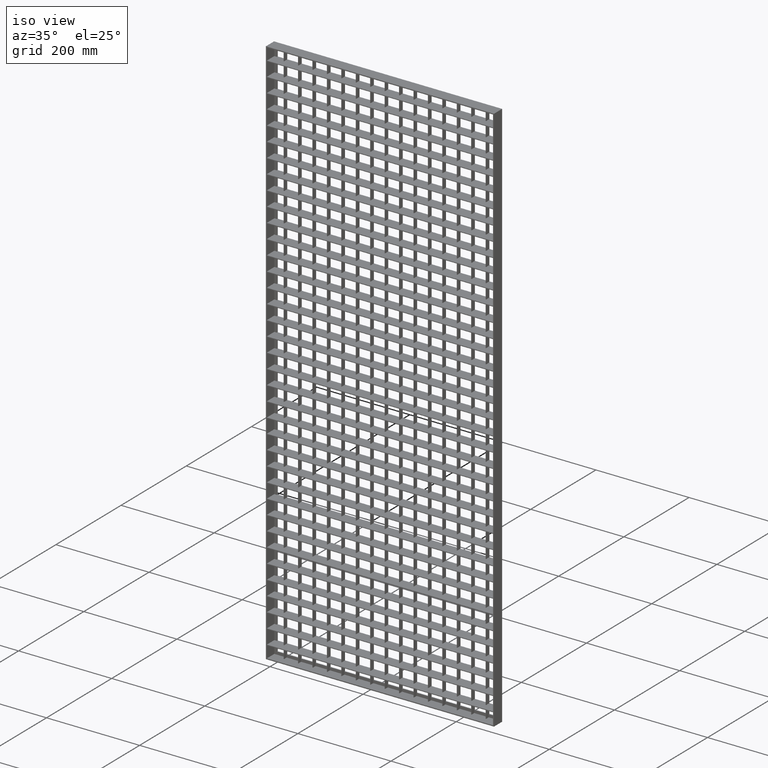
[diagram: clean part render]
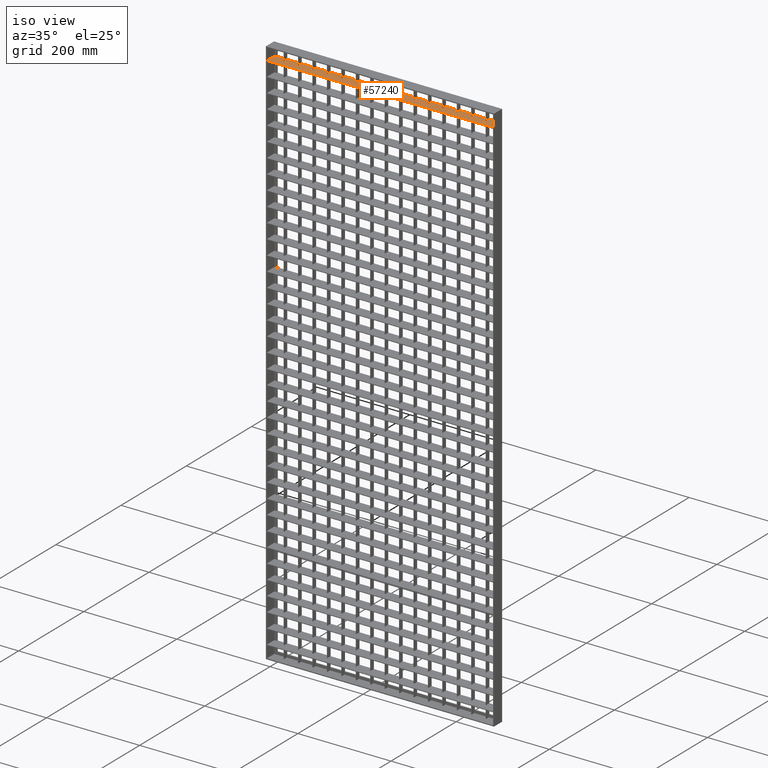
[diagram: same view with one face highlighted and labeled with its STEP entity id]
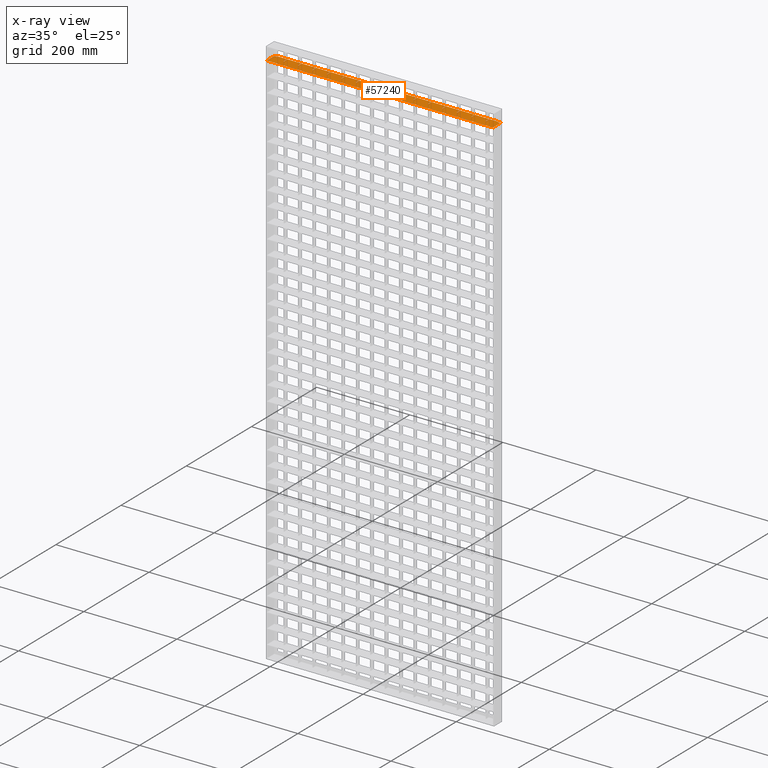
[diagram: x-ray of the same camera — body ghosted, the highlighted face saturated]
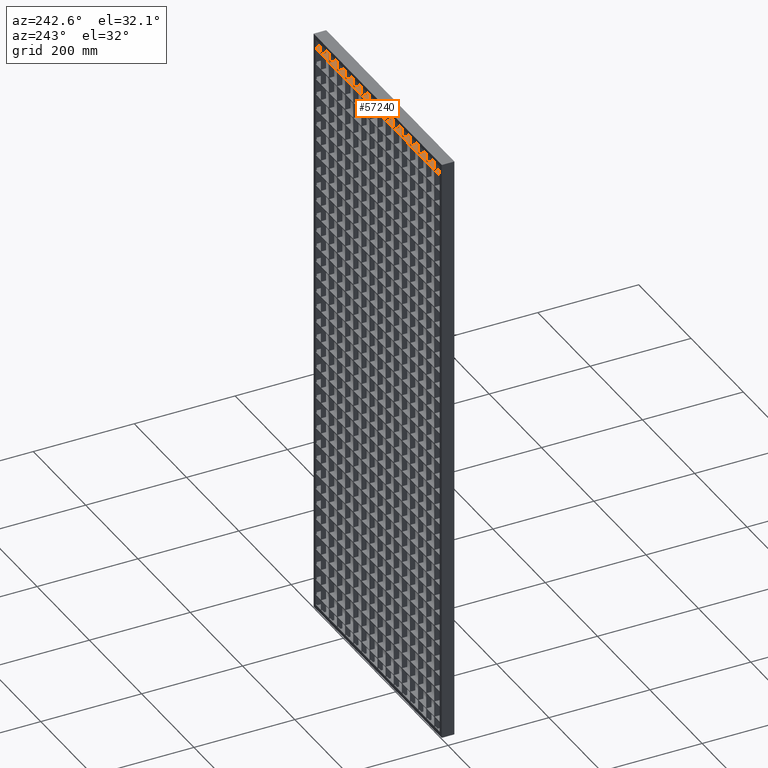
[diagram: same view with one face highlighted and labeled with its STEP entity id]
A machine part, iso view. The second image highlights one B-rep face of the part: STEP entity #57240.
The next image is the same camera in x-ray: the body ghosted, the highlighted face saturated — about 0% of this face is hidden behind the body in this view.
A second angle (auxiliary view) of the same face is appended — the face is thin or edge-on in the first view.
In plain terms, the highlighted planar face has unit normal (0, 0, 1).
Its self-contained STEP definition (entity closure, byte-faithful):
#179 = VERTEX_POINT ( 'NONE', #82049 ) ;
#290 = LINE ( 'NONE', #67881, #71410 ) ;
#301 = ORIENTED_EDGE ( 'NONE', *, *, #74861, .T. ) ;
#399 = DIRECTION ( 'NONE',  ( 0.0000000000000000000, -1.000000000000000000, 0.0000000000000000000 ) ) ;
#492 = CARTESIAN_POINT ( 'NONE',  ( 368.5000000000000600, -12.49999999999984900, -27.25000000000022000 ) ) ;
#608 = VECTOR ( 'NONE', #70269, 1000.000000000000000 ) ;
#777 = VERTEX_POINT ( 'NONE', #32327 ) ;
#1121 = EDGE_CURVE ( 'NONE', #78801, #20871, #65491, .T. ) ;
#1124 = ORIENTED_EDGE ( 'NONE', *, *, #14972, .T. ) ;
#1301 = LINE ( 'NONE', #13552, #60196 ) ;
#1428 = CARTESIAN_POINT ( 'NONE',  ( 513.0449595727365000, 12.50000000000015100, -27.25000000000022000 ) ) ;
#1573 = VECTOR ( 'NONE', #16664, 1000.000000000000000 ) ;
#1632 = ORIENTED_EDGE ( 'NONE', *, *, #39075, .T. ) ;
#1641 = EDGE_CURVE ( 'NONE', #50574, #64237, #36988, .T. ) ;
#1936 = DIRECTION ( 'NONE',  ( 0.0000000000000000000, -1.000000000000000000, 0.0000000000000000000 ) ) ;
#2053 = LINE ( 'NONE', #74889, #13207 ) ;
#2091 = LINE ( 'NONE', #16796, #67082 ) ;
#2298 = CARTESIAN_POINT ( 'NONE',  ( 399.5000000000001100, -12.49999999999984900, -27.25000000000022000 ) ) ;
#2382 = VERTEX_POINT ( 'NONE', #71252 ) ;
#2430 = VECTOR ( 'NONE', #79206, 1000.000000000000000 ) ;
#2526 = DIRECTION ( 'NONE',  ( 0.0000000000000000000, 0.0000000000000000000, 1.000000000000000000 ) ) ;
#2746 = DIRECTION ( 'NONE',  ( -0.0000000000000000000, 1.000000000000000000, 0.0000000000000000000 ) ) ;
#2787 = CARTESIAN_POINT ( 'NONE',  ( 307.5000000000000600, 12.50000000000000000, -27.25000000000022000 ) ) ;
#2818 = VECTOR ( 'NONE', #54681, 1000.000000000000000 ) ;
#3005 = LINE ( 'NONE', #13203, #59894 ) ;
#3041 = CARTESIAN_POINT ( 'NONE',  ( 338.5000000000000600, 12.50000000000000000, -27.25000000000022000 ) ) ;
#3286 = VERTEX_POINT ( 'NONE', #12672 ) ;
#3292 = CARTESIAN_POINT ( 'NONE',  ( 513.0449595727365000, 12.50000000000015100, -27.25000000000022000 ) ) ;
#3521 = VECTOR ( 'NONE', #75691, 1000.000000000000000 ) ;
#3572 = VERTEX_POINT ( 'NONE', #35061 ) ;
#3701 = ORIENTED_EDGE ( 'NONE', *, *, #54705, .F. ) ;
#3878 = VECTOR ( 'NONE', #27784, 1000.000000000000000 ) ;
#3895 = LINE ( 'NONE', #48226, #36528 ) ;
#4061 = DIRECTION ( 'NONE',  ( 0.0000000000000000000, -1.000000000000000000, 0.0000000000000000000 ) ) ;
#4094 = DIRECTION ( 'NONE',  ( -1.000000000000000000, -3.061616997868382200E-016, 0.0000000000000000000 ) ) ;
#4120 = EDGE_CURVE ( 'NONE', #14682, #23300, #60972, .T. ) ;
#4122 = LINE ( 'NONE', #39329, #46860 ) ;
#4477 = ORIENTED_EDGE ( 'NONE', *, *, #80331, .F. ) ;
#4606 = EDGE_CURVE ( 'NONE', #19471, #58440, #80798, .T. ) ;
#6567 = VECTOR ( 'NONE', #36056, 1000.000000000000000 ) ;
#6714 = VERTEX_POINT ( 'NONE', #80597 ) ;
#6727 = EDGE_CURVE ( 'NONE', #21169, #67496, #30632, .T. ) ;
#6815 = ORIENTED_EDGE ( 'NONE', *, *, #45180, .T. ) ;
#6920 = LINE ( 'NONE', #66906, #76962 ) ;
#7154 = VECTOR ( 'NONE', #74760, 1000.000000000000000 ) ;
#7201 = CARTESIAN_POINT ( 'NONE',  ( 400.5000000000001100, 12.50000000000000000, -27.25000000000022000 ) ) ;
#7277 = DIRECTION ( 'NONE',  ( 1.000000000000000000, 4.336808689942013800E-016, -0.0000000000000000000 ) ) ;
#7315 = CARTESIAN_POINT ( 'NONE',  ( 461.5000000000000000, 12.50000000000013700, -27.25000000000022000 ) ) ;
#7510 = CARTESIAN_POINT ( 'NONE',  ( 513.0449595727366200, 2.500000000000184300, -27.25000000000022000 ) ) ;
#8045 = EDGE_CURVE ( 'NONE', #84262, #36416, #2053, .T. ) ;
#8152 = VERTEX_POINT ( 'NONE', #30033 ) ;
#8231 = VECTOR ( 'NONE', #57212, 1000.000000000000000 ) ;
#8236 = EDGE_CURVE ( 'NONE', #45167, #38481, #67993, .T. ) ;
#8321 = DIRECTION ( 'NONE',  ( -1.000000000000000000, -3.061616997868382200E-016, 0.0000000000000000000 ) ) ;
#9038 = DIRECTION ( 'NONE',  ( 1.000000000000000000, 0.0000000000000000000, -0.0000000000000000000 ) ) ;
#9041 = VERTEX_POINT ( 'NONE', #38743 ) ;
#9161 = EDGE_CURVE ( 'NONE', #64237, #63414, #27256, .T. ) ;
#9406 = DIRECTION ( 'NONE',  ( -1.000000000000000000, -3.061616997868382200E-016, 0.0000000000000000000 ) ) ;
#9466 = EDGE_CURVE ( 'NONE', #79846, #64655, #61624, .T. ) ;
#9559 = CARTESIAN_POINT ( 'NONE',  ( 431.5000000000001700, 12.50000000000000000, -27.25000000000022000 ) ) ;
#9587 = CARTESIAN_POINT ( 'NONE',  ( 513.0449595727365000, 12.50000000000015100, -27.25000000000022000 ) ) ;
#9999 = LINE ( 'NONE', #37578, #17120 ) ;
#10311 = EDGE_CURVE ( 'NONE', #54406, #83005, #26130, .T. ) ;
#10560 = ORIENTED_EDGE ( 'NONE', *, *, #53587, .T. ) ;
#10700 = CARTESIAN_POINT ( 'NONE',  ( 513.0449595727365000, 12.50000000000015100, -27.25000000000022000 ) ) ;
#10742 = VECTOR ( 'NONE', #37123, 1000.000000000000000 ) ;
#10826 = VERTEX_POINT ( 'NONE', #47107 ) ;
#10838 = EDGE_CURVE ( 'NONE', #9041, #54406, #54363, .T. ) ;
#11242 = ORIENTED_EDGE ( 'NONE', *, *, #74610, .F. ) ;
#11270 = CARTESIAN_POINT ( 'NONE',  ( 245.5000000000000000, 12.50000000000006900, -27.25000000000022000 ) ) ;
#11291 = ORIENTED_EDGE ( 'NONE', *, *, #70227, .T. ) ;
#11293 = CARTESIAN_POINT ( 'NONE',  ( 513.0449595727366200, 2.500000000000116800, -27.25000000000022000 ) ) ;
#11407 = CARTESIAN_POINT ( 'NONE',  ( 182.4999999999999400, 2.499999999999999100, -27.25000000000022000 ) ) ;
#11606 = LINE ( 'NONE', #2298, #52289 ) ;
#11679 = ORIENTED_EDGE ( 'NONE', *, *, #51276, .T. ) ;
#11822 = DIRECTION ( 'NONE',  ( -1.000000000000000000, 4.336808689942013800E-016, 0.0000000000000000000 ) ) ;
#11828 = VERTEX_POINT ( 'NONE', #38970 ) ;
#12194 = EDGE_CURVE ( 'NONE', #54888, #74789, #40897, .T. ) ;
#12672 = CARTESIAN_POINT ( 'NONE',  ( 90.50000000000002800, 2.500000000000000400, -27.25000000000022000 ) ) ;
#12685 = VERTEX_POINT ( 'NONE', #71489 ) ;
#12736 = CARTESIAN_POINT ( 'NONE',  ( 120.5000000000000000, 12.50000000000000000, -27.25000000000022000 ) ) ;
#12874 = CARTESIAN_POINT ( 'NONE',  ( 90.50000000000002800, -12.49999999999984900, -27.25000000000022000 ) ) ;
#13077 = ORIENTED_EDGE ( 'NONE', *, *, #78832, .T. ) ;
#13203 = CARTESIAN_POINT ( 'NONE',  ( 513.0449595727366200, 2.500000000000170500, -27.25000000000022000 ) ) ;
#13207 = VECTOR ( 'NONE', #62368, 1000.000000000000000 ) ;
#13326 = VECTOR ( 'NONE', #14378, 1000.000000000000000 ) ;
#13327 = EDGE_CURVE ( 'NONE', #72187, #67411, #66159, .T. ) ;
#13438 = CARTESIAN_POINT ( 'NONE',  ( 513.0449595727366200, 2.499999999999952000, -27.25000000000022000 ) ) ;
#13485 = DIRECTION ( 'NONE',  ( 0.0000000000000000000, -1.000000000000000000, 0.0000000000000000000 ) ) ;
#13493 = DIRECTION ( 'NONE',  ( 1.000000000000000000, 4.336808689942013800E-016, -0.0000000000000000000 ) ) ;
#13552 = CARTESIAN_POINT ( 'NONE',  ( 513.0449595727366200, 2.500000000000130600, -27.25000000000022000 ) ) ;
#13593 = EDGE_CURVE ( 'NONE', #31726, #3286, #18349, .T. ) ;
#13707 = EDGE_CURVE ( 'NONE', #61468, #9041, #34665, .T. ) ;
#13745 = EDGE_CURVE ( 'NONE', #70165, #65222, #49863, .T. ) ;
#13857 = DIRECTION ( 'NONE',  ( 0.0000000000000000000, -1.000000000000000000, 0.0000000000000000000 ) ) ;
#14378 = DIRECTION ( 'NONE',  ( -1.000000000000000000, -3.061616997868382200E-016, 0.0000000000000000000 ) ) ;
#14404 = VECTOR ( 'NONE', #13485, 1000.000000000000000 ) ;
#14485 = ORIENTED_EDGE ( 'NONE', *, *, #40112, .F. ) ;
#14489 = EDGE_CURVE ( 'NONE', #78989, #73516, #29349, .T. ) ;
#14540 = LINE ( 'NONE', #11293, #23663 ) ;
#14682 = VERTEX_POINT ( 'NONE', #63804 ) ;
#14972 = EDGE_CURVE ( 'NONE', #179, #43709, #6920, .T. ) ;
#15036 = VERTEX_POINT ( 'NONE', #76242 ) ;
#15101 = EDGE_CURVE ( 'NONE', #72975, #38552, #58688, .T. ) ;
#15360 = LINE ( 'NONE', #80813, #8231 ) ;
#15785 = CARTESIAN_POINT ( 'NONE',  ( 431.5000000000001700, 2.500000000000000400, -27.25000000000022000 ) ) ;
#16020 = LINE ( 'NONE', #53325, #37365 ) ;
#16076 = VERTEX_POINT ( 'NONE', #40880 ) ;
#16203 = EDGE_CURVE ( 'NONE', #64655, #20650, #15360, .T. ) ;
#16664 = DIRECTION ( 'NONE',  ( -1.000000000000000000, -3.061616997868382200E-016, 0.0000000000000000000 ) ) ;
#16796 = CARTESIAN_POINT ( 'NONE',  ( 89.50000000000002800, -12.49999999999984900, -27.25000000000022000 ) ) ;
#17059 = EDGE_CURVE ( 'NONE', #68192, #39943, #43632, .T. ) ;
#17120 = VECTOR ( 'NONE', #75867, 1000.000000000000000 ) ;
#17418 = CARTESIAN_POINT ( 'NONE',  ( 482.0000000000002300, 10.50000000000036400, -27.25000000000022000 ) ) ;
#17986 = ORIENTED_EDGE ( 'NONE', *, *, #23069, .F. ) ;
#18349 = LINE ( 'NONE', #7510, #74202 ) ;
#18602 = ORIENTED_EDGE ( 'NONE', *, *, #13745, .F. ) ;
#18914 = CARTESIAN_POINT ( 'NONE',  ( 482.0000000000002300, 10.50000000000000500, -27.25000000000022000 ) ) ;
#19074 = VERTEX_POINT ( 'NONE', #3041 ) ;
#19224 = LINE ( 'NONE', #56693, #68939 ) ;
#19450 = CARTESIAN_POINT ( 'NONE',  ( 513.0449595727365000, 12.50000000000015100, -27.25000000000022000 ) ) ;
#19471 = VERTEX_POINT ( 'NONE', #74147 ) ;
#19727 = ORIENTED_EDGE ( 'NONE', *, *, #6727, .T. ) ;
#19767 = CARTESIAN_POINT ( 'NONE',  ( 338.5000000000000600, 2.500000000000000400, -27.25000000000022000 ) ) ;
#19770 = CARTESIAN_POINT ( 'NONE',  ( 275.5000000000000600, 12.50000000000007800, -27.25000000000022000 ) ) ;
#20234 = VECTOR ( 'NONE', #47634, 1000.000000000000000 ) ;
#20409 = CARTESIAN_POINT ( 'NONE',  ( 152.4999999999999700, 2.500000000000000400, -27.25000000000022000 ) ) ;
#20458 = ORIENTED_EDGE ( 'NONE', *, *, #44564, .T. ) ;
#20587 = CARTESIAN_POINT ( 'NONE',  ( 58.50000000000000000, -12.49999999999984900, -27.25000000000022000 ) ) ;
#20650 = VERTEX_POINT ( 'NONE', #46484 ) ;
#20871 = VERTEX_POINT ( 'NONE', #81304 ) ;
#20936 = VECTOR ( 'NONE', #4094, 1000.000000000000000 ) ;
#21114 = VERTEX_POINT ( 'NONE', #7201 ) ;
#21169 = VERTEX_POINT ( 'NONE', #27405 ) ;
#21420 = EDGE_CURVE ( 'NONE', #72180, #67650, #37117, .T. ) ;
#21512 = EDGE_CURVE ( 'NONE', #10826, #39083, #53317, .T. ) ;
#21538 = CARTESIAN_POINT ( 'NONE',  ( 337.5000000000000000, -12.49999999999984900, -27.25000000000022000 ) ) ;
#21726 = DIRECTION ( 'NONE',  ( -1.000000000000000000, 4.336808689942013800E-016, 0.0000000000000000000 ) ) ;
#21747 = DIRECTION ( 'NONE',  ( -1.000000000000000000, -3.061616997868382200E-016, 0.0000000000000000000 ) ) ;
#21781 = CARTESIAN_POINT ( 'NONE',  ( 59.50000000000005000, 12.50000000000001200, -27.25000000000022000 ) ) ;
#21810 = LINE ( 'NONE', #69261, #48209 ) ;
#21948 = ORIENTED_EDGE ( 'NONE', *, *, #1641, .T. ) ;
#22561 = ORIENTED_EDGE ( 'NONE', *, *, #48141, .F. ) ;
#22646 = DIRECTION ( 'NONE',  ( -0.0000000000000000000, 1.000000000000000000, 0.0000000000000000000 ) ) ;
#22867 = LINE ( 'NONE', #10700, #3521 ) ;
#22935 = EDGE_CURVE ( 'NONE', #43075, #68192, #66196, .T. ) ;
#23069 = EDGE_CURVE ( 'NONE', #14682, #70165, #62068, .T. ) ;
#23112 = DIRECTION ( 'NONE',  ( -8.673617379884034500E-016, 1.000000000000000000, 0.0000000000000000000 ) ) ;
#23221 = DIRECTION ( 'NONE',  ( -1.000000000000000000, -3.061616997868382200E-016, 0.0000000000000000000 ) ) ;
#23242 = EDGE_CURVE ( 'NONE', #58440, #23300, #69175, .T. ) ;
#23300 = VERTEX_POINT ( 'NONE', #23944 ) ;
#23412 = ORIENTED_EDGE ( 'NONE', *, *, #10838, .T. ) ;
#23590 = CARTESIAN_POINT ( 'NONE',  ( 245.5000000000000000, -12.49999999999984900, -27.25000000000022000 ) ) ;
#23663 = VECTOR ( 'NONE', #24409, 1000.000000000000000 ) ;
#23870 = LINE ( 'NONE', #61015, #6567 ) ;
#23944 = CARTESIAN_POINT ( 'NONE',  ( 28.50000000000002500, 12.50000000000000200, -27.25000000000022000 ) ) ;
#24181 = EDGE_CURVE ( 'NONE', #78801, #19471, #4122, .T. ) ;
#24334 = VECTOR ( 'NONE', #45800, 1000.000000000000000 ) ;
#24409 = DIRECTION ( 'NONE',  ( 1.000000000000000000, 4.336808689942013800E-016, -0.0000000000000000000 ) ) ;
#24556 = LINE ( 'NONE', #52929, #33664 ) ;
#24576 = CARTESIAN_POINT ( 'NONE',  ( 369.5000000000001100, 2.500000000000000400, -27.25000000000022000 ) ) ;
#25247 = DIRECTION ( 'NONE',  ( 0.0000000000000000000, -1.000000000000000000, 0.0000000000000000000 ) ) ;
#25431 = EDGE_CURVE ( 'NONE', #83005, #777, #53669, .T. ) ;
#25435 = DIRECTION ( 'NONE',  ( -1.000000000000000000, 0.0000000000000000000, 0.0000000000000000000 ) ) ;
#26130 = LINE ( 'NONE', #81236, #33198 ) ;
#26398 = VERTEX_POINT ( 'NONE', #58625 ) ;
#26698 = VECTOR ( 'NONE', #34563, 1000.000000000000000 ) ;
#26739 = ORIENTED_EDGE ( 'NONE', *, *, #4120, .T. ) ;
#27103 = DIRECTION ( 'NONE',  ( -1.000000000000000000, 4.336808689942013800E-016, 0.0000000000000000000 ) ) ;
#27175 = CARTESIAN_POINT ( 'NONE',  ( 513.0449595727365000, 12.50000000000015100, -27.25000000000022000 ) ) ;
#27256 = LINE ( 'NONE', #27375, #51570 ) ;
#27272 = VECTOR ( 'NONE', #22646, 1000.000000000000000 ) ;
#27375 = CARTESIAN_POINT ( 'NONE',  ( 513.0449595727366200, 2.499999999999977800, -27.25000000000022000 ) ) ;
#27405 = CARTESIAN_POINT ( 'NONE',  ( 276.5000000000001100, 12.50000000000000000, -27.25000000000022000 ) ) ;
#27542 = ORIENTED_EDGE ( 'NONE', *, *, #23242, .F. ) ;
#27784 = DIRECTION ( 'NONE',  ( -0.0000000000000000000, 1.000000000000000000, 0.0000000000000000000 ) ) ;
#27874 = DIRECTION ( 'NONE',  ( -1.000000000000000000, -3.061616997868382200E-016, 0.0000000000000000000 ) ) ;
#28198 = EDGE_CURVE ( 'NONE', #38552, #73516, #24556, .T. ) ;
#28249 = CARTESIAN_POINT ( 'NONE',  ( 513.0449595727365000, 12.50000000000015100, -27.25000000000022000 ) ) ;
#28698 = CARTESIAN_POINT ( 'NONE',  ( 461.5000000000000600, 2.500000000000000900, -27.25000000000022000 ) ) ;
#28993 = VECTOR ( 'NONE', #32480, 1000.000000000000000 ) ;
#29294 = DIRECTION ( 'NONE',  ( 0.0000000000000000000, -1.000000000000000000, 0.0000000000000000000 ) ) ;
#29331 = CARTESIAN_POINT ( 'NONE',  ( 152.5000000000000300, 12.50000000000004100, -27.25000000000022000 ) ) ;
#29349 = LINE ( 'NONE', #23590, #57758 ) ;
#29624 = LINE ( 'NONE', #19450, #71247 ) ;
#29886 = ORIENTED_EDGE ( 'NONE', *, *, #54195, .T. ) ;
#29936 = CARTESIAN_POINT ( 'NONE',  ( 430.5000000000001700, 2.500000000000000900, -27.25000000000022000 ) ) ;
#30011 = CARTESIAN_POINT ( 'NONE',  ( 368.5000000000000600, 12.50000000000010700, -27.25000000000022000 ) ) ;
#30017 = LINE ( 'NONE', #74786, #20936 ) ;
#30033 = CARTESIAN_POINT ( 'NONE',  ( 400.5000000000001100, 2.500000000000000400, -27.25000000000022000 ) ) ;
#30273 = ORIENTED_EDGE ( 'NONE', *, *, #22935, .F. ) ;
#30391 = ORIENTED_EDGE ( 'NONE', *, *, #76208, .F. ) ;
#30554 = LINE ( 'NONE', #13438, #72209 ) ;
#30567 = LINE ( 'NONE', #27175, #13326 ) ;
#30632 = LINE ( 'NONE', #79758, #43870 ) ;
#30813 = LINE ( 'NONE', #76773, #75523 ) ;
#30870 = DIRECTION ( 'NONE',  ( -0.0000000000000000000, -1.000000000000000000, 0.0000000000000000000 ) ) ;
#30891 = DIRECTION ( 'NONE',  ( -1.000000000000000000, 0.0000000000000000000, 0.0000000000000000000 ) ) ;
#31386 = CARTESIAN_POINT ( 'NONE',  ( 151.5000000000000000, 12.50000000000000000, -27.25000000000022000 ) ) ;
#31726 = VERTEX_POINT ( 'NONE', #35597 ) ;
#31762 = ORIENTED_EDGE ( 'NONE', *, *, #70494, .F. ) ;
#32041 = CARTESIAN_POINT ( 'NONE',  ( 213.5000000000000300, -12.49999999999984900, -27.25000000000022000 ) ) ;
#32327 = CARTESIAN_POINT ( 'NONE',  ( 307.5000000000000600, 2.500000000000000400, -27.25000000000022000 ) ) ;
#32471 = ORIENTED_EDGE ( 'NONE', *, *, #13327, .T. ) ;
#32480 = DIRECTION ( 'NONE',  ( -0.0000000000000000000, 1.000000000000000000, 0.0000000000000000000 ) ) ;
#32497 = ORIENTED_EDGE ( 'NONE', *, *, #21420, .T. ) ;
#32600 = CARTESIAN_POINT ( 'NONE',  ( 244.5000000000000000, -12.49999999999984900, -27.25000000000022000 ) ) ;
#32614 = VECTOR ( 'NONE', #25435, 1000.000000000000000 ) ;
#32703 = ORIENTED_EDGE ( 'NONE', *, *, #28198, .T. ) ;
#32794 = CARTESIAN_POINT ( 'NONE',  ( 2.000000000000002700, 10.50000000000000500, -27.25000000000022000 ) ) ;
#33198 = VECTOR ( 'NONE', #67621, 1000.000000000000000 ) ;
#33315 = ORIENTED_EDGE ( 'NONE', *, *, #58736, .T. ) ;
#33378 = DIRECTION ( 'NONE',  ( 1.000000000000000000, 4.336808689942013800E-016, -0.0000000000000000000 ) ) ;
#33462 = CARTESIAN_POINT ( 'NONE',  ( 488.0000000000002800, 10.50000000000000500, -27.25000000000022000 ) ) ;
#33572 = ORIENTED_EDGE ( 'NONE', *, *, #13707, .T. ) ;
#33664 = VECTOR ( 'NONE', #53215, 1000.000000000000000 ) ;
#33715 = VECTOR ( 'NONE', #63947, 1000.000000000000000 ) ;
#34004 = EDGE_CURVE ( 'NONE', #38481, #51246, #52695, .T. ) ;
#34042 = DIRECTION ( 'NONE',  ( -0.0000000000000000000, 1.000000000000000000, 0.0000000000000000000 ) ) ;
#34218 = CARTESIAN_POINT ( 'NONE',  ( 213.4999999999999700, 2.500000000000000400, -27.25000000000022000 ) ) ;
#34298 = DIRECTION ( 'NONE',  ( -1.000000000000000000, -3.061616997868382200E-016, 0.0000000000000000000 ) ) ;
#34489 = ORIENTED_EDGE ( 'NONE', *, *, #82071, .T. ) ;
#34563 = DIRECTION ( 'NONE',  ( 0.0000000000000000000, -1.000000000000000000, 0.0000000000000000000 ) ) ;
#34665 = LINE ( 'NONE', #41599, #41761 ) ;
#35029 = DIRECTION ( 'NONE',  ( -0.0000000000000000000, 1.000000000000000000, 0.0000000000000000000 ) ) ;
#35061 = CARTESIAN_POINT ( 'NONE',  ( 369.5000000000001100, 12.50000000000000000, -27.25000000000022000 ) ) ;
#35140 = CARTESIAN_POINT ( 'NONE',  ( 461.5000000000000600, -12.49999999999984900, -27.25000000000022000 ) ) ;
#35468 = LINE ( 'NONE', #63364, #67941 ) ;
#35495 = CARTESIAN_POINT ( 'NONE',  ( 275.5000000000001100, 2.500000000000000900, -27.25000000000022000 ) ) ;
#35597 = CARTESIAN_POINT ( 'NONE',  ( 89.49999999999997200, 2.500000000000000400, -27.25000000000022000 ) ) ;
#35782 = ORIENTED_EDGE ( 'NONE', *, *, #65990, .F. ) ;
#35994 = DIRECTION ( 'NONE',  ( 1.000000000000000000, 4.336808689942013800E-016, -0.0000000000000000000 ) ) ;
#36056 = DIRECTION ( 'NONE',  ( -0.0000000000000000000, 1.000000000000000000, 0.0000000000000000000 ) ) ;
#36098 = CARTESIAN_POINT ( 'NONE',  ( 7.999999999999992900, 10.50000000000000500, -27.25000000000022000 ) ) ;
#36262 = VECTOR ( 'NONE', #69274, 1000.000000000000000 ) ;
#36358 = ORIENTED_EDGE ( 'NONE', *, *, #42445, .F. ) ;
#36416 = VERTEX_POINT ( 'NONE', #65087 ) ;
#36528 = VECTOR ( 'NONE', #35994, 1000.000000000000000 ) ;
#36702 = EDGE_CURVE ( 'NONE', #10826, #36416, #66510, .T. ) ;
#36849 = EDGE_CURVE ( 'NONE', #20871, #45856, #21810, .T. ) ;
#36988 = LINE ( 'NONE', #52834, #2430 ) ;
#37018 = CARTESIAN_POINT ( 'NONE',  ( 513.0449595727366200, 2.500000000000142600, -27.25000000000022000 ) ) ;
#37100 = DIRECTION ( 'NONE',  ( -0.0000000000000000000, 1.000000000000000000, 0.0000000000000000000 ) ) ;
#37117 = LINE ( 'NONE', #49644, #60478 ) ;
#37123 = DIRECTION ( 'NONE',  ( 1.000000000000000000, 4.336808689942013800E-016, -0.0000000000000000000 ) ) ;
#37172 = DIRECTION ( 'NONE',  ( -0.0000000000000000000, 1.000000000000000000, 0.0000000000000000000 ) ) ;
#37287 = CARTESIAN_POINT ( 'NONE',  ( 90.50000000000002800, 12.50000000000002100, -27.25000000000022000 ) ) ;
#37365 = VECTOR ( 'NONE', #1936, 1000.000000000000000 ) ;
#37578 = CARTESIAN_POINT ( 'NONE',  ( 59.50000000000000000, -12.49999999999984900, -27.25000000000022000 ) ) ;
#38481 = VERTEX_POINT ( 'NONE', #52111 ) ;
#38552 = VERTEX_POINT ( 'NONE', #19770 ) ;
#38743 = CARTESIAN_POINT ( 'NONE',  ( 337.5000000000000600, 2.500000000000000900, -27.25000000000022000 ) ) ;
#38970 = CARTESIAN_POINT ( 'NONE',  ( 183.5000000000000600, 12.50000000000005200, -27.25000000000022000 ) ) ;
#39075 = EDGE_CURVE ( 'NONE', #8152, #73273, #30554, .T. ) ;
#39083 = VERTEX_POINT ( 'NONE', #83833 ) ;
#39329 = CARTESIAN_POINT ( 'NONE',  ( 27.49999999999996800, -12.49999999999984900, -27.25000000000022000 ) ) ;
#39425 = ORIENTED_EDGE ( 'NONE', *, *, #10311, .T. ) ;
#39594 = DIRECTION ( 'NONE',  ( -1.000000000000000000, -3.061616997868382200E-016, 0.0000000000000000000 ) ) ;
#39630 = VECTOR ( 'NONE', #56160, 1000.000000000000000 ) ;
#39797 = CARTESIAN_POINT ( 'NONE',  ( 399.5000000000001100, 2.500000000000000900, -27.25000000000022000 ) ) ;
#39808 = ORIENTED_EDGE ( 'NONE', *, *, #79972, .T. ) ;
#39943 = VERTEX_POINT ( 'NONE', #60862 ) ;
#40112 = EDGE_CURVE ( 'NONE', #6714, #2382, #35468, .T. ) ;
#40412 = VECTOR ( 'NONE', #43700, 1000.000000000000000 ) ;
#40663 = CARTESIAN_POINT ( 'NONE',  ( 120.5000000000000000, -12.49999999999984900, -27.25000000000022000 ) ) ;
#40784 = VECTOR ( 'NONE', #77476, 1000.000000000000000 ) ;
#40880 = CARTESIAN_POINT ( 'NONE',  ( 306.5000000000000600, 2.500000000000000900, -27.25000000000022000 ) ) ;
#40897 = LINE ( 'NONE', #40663, #83524 ) ;
#40939 = CARTESIAN_POINT ( 'NONE',  ( 2.000000000000002700, 10.50000000000000500, -27.25000000000022000 ) ) ;
#41457 = CARTESIAN_POINT ( 'NONE',  ( 513.0449595727366200, -12.49999999999984900, -27.25000000000022000 ) ) ;
#41599 = CARTESIAN_POINT ( 'NONE',  ( 513.0449595727366200, 2.499999999999924100, -27.25000000000022000 ) ) ;
#41761 = VECTOR ( 'NONE', #21726, 1000.000000000000000 ) ;
#41858 = EDGE_CURVE ( 'NONE', #47760, #2382, #63779, .T. ) ;
#42131 = CARTESIAN_POINT ( 'NONE',  ( 28.49999999999997200, -12.49999999999984900, -27.25000000000022000 ) ) ;
#42445 = EDGE_CURVE ( 'NONE', #70780, #15036, #69746, .T. ) ;
#42666 = ORIENTED_EDGE ( 'NONE', *, *, #36849, .T. ) ;
#43070 = FACE_OUTER_BOUND ( 'NONE', #50783, .T. ) ;
#43075 = VERTEX_POINT ( 'NONE', #66834 ) ;
#43398 = VECTOR ( 'NONE', #51601, 1000.000000000000000 ) ;
#43453 = ORIENTED_EDGE ( 'NONE', *, *, #13593, .F. ) ;
#43632 = LINE ( 'NONE', #37018, #24334 ) ;
#43700 = DIRECTION ( 'NONE',  ( -1.000000000000000000, -3.061616997868382200E-016, 0.0000000000000000000 ) ) ;
#43709 = VERTEX_POINT ( 'NONE', #21781 ) ;
#43785 = AXIS2_PLACEMENT_3D ( 'NONE', #41457, #2526, #9038 ) ;
#43870 = VECTOR ( 'NONE', #80871, 1000.000000000000000 ) ;
#44211 = ORIENTED_EDGE ( 'NONE', *, *, #49276, .T. ) ;
#44564 = EDGE_CURVE ( 'NONE', #777, #16076, #290, .T. ) ;
#45075 = ORIENTED_EDGE ( 'NONE', *, *, #8236, .T. ) ;
#45167 = VERTEX_POINT ( 'NONE', #24576 ) ;
#45180 = EDGE_CURVE ( 'NONE', #20650, #21114, #67159, .T. ) ;
#45369 = CARTESIAN_POINT ( 'NONE',  ( 307.5000000000000000, -12.49999999999984900, -27.25000000000022000 ) ) ;
#45705 = CARTESIAN_POINT ( 'NONE',  ( 482.0000000000002800, 12.50000000000000500, -27.25000000000022000 ) ) ;
#45793 = EDGE_CURVE ( 'NONE', #179, #31726, #2091, .T. ) ;
#45800 = DIRECTION ( 'NONE',  ( 1.000000000000000000, 4.336808689942013800E-016, -0.0000000000000000000 ) ) ;
#45856 = VERTEX_POINT ( 'NONE', #36098 ) ;
#46315 = VECTOR ( 'NONE', #8321, 1000.000000000000000 ) ;
#46484 = CARTESIAN_POINT ( 'NONE',  ( 430.5000000000001100, 12.50000000000012600, -27.25000000000022000 ) ) ;
#46812 = ORIENTED_EDGE ( 'NONE', *, *, #34004, .T. ) ;
#46831 = ORIENTED_EDGE ( 'NONE', *, *, #62762, .T. ) ;
#46860 = VECTOR ( 'NONE', #399, 1000.000000000000000 ) ;
#47107 = CARTESIAN_POINT ( 'NONE',  ( 244.5000000000000000, 12.50000000000000000, -27.25000000000022000 ) ) ;
#47108 = CARTESIAN_POINT ( 'NONE',  ( 58.49999999999994300, 2.499999999999999100, -27.25000000000022000 ) ) ;
#47606 = CARTESIAN_POINT ( 'NONE',  ( 400.5000000000001100, -12.49999999999984900, -27.25000000000022000 ) ) ;
#47634 = DIRECTION ( 'NONE',  ( -0.0000000000000000000, 1.000000000000000000, 0.0000000000000000000 ) ) ;
#47682 = PLANE ( 'NONE',  #43785 ) ;
#47760 = VERTEX_POINT ( 'NONE', #31386 ) ;
#47999 = LINE ( 'NONE', #52732, #55067 ) ;
#48141 = EDGE_CURVE ( 'NONE', #47760, #57636, #53880, .T. ) ;
#48209 = VECTOR ( 'NONE', #62447, 1000.000000000000000 ) ;
#48215 = CARTESIAN_POINT ( 'NONE',  ( 306.5000000000000000, -12.49999999999984900, -27.25000000000022000 ) ) ;
#48226 = CARTESIAN_POINT ( 'NONE',  ( 513.0449595727366200, 2.500000000000156800, -27.25000000000022000 ) ) ;
#48259 = VECTOR ( 'NONE', #74259, 1000.000000000000000 ) ;
#48356 = CARTESIAN_POINT ( 'NONE',  ( 214.5000000000000300, 2.500000000000000400, -27.25000000000022000 ) ) ;
#48642 = ORIENTED_EDGE ( 'NONE', *, *, #17059, .F. ) ;
#48735 = CARTESIAN_POINT ( 'NONE',  ( 27.49999999999999600, 12.50000000000000000, -27.25000000000022000 ) ) ;
#49050 = CARTESIAN_POINT ( 'NONE',  ( 513.0449595727366200, -12.49999999999984900, -27.25000000000022000 ) ) ;
#49242 = VECTOR ( 'NONE', #9406, 1000.000000000000000 ) ;
#49276 = EDGE_CURVE ( 'NONE', #63391, #15036, #19224, .T. ) ;
#49445 = DIRECTION ( 'NONE',  ( -1.000000000000000000, 4.336808689942013800E-016, 0.0000000000000000000 ) ) ;
#49644 = CARTESIAN_POINT ( 'NONE',  ( 245.0000000000001100, 10.50000000000000500, -27.25000000000022000 ) ) ;
#49701 = CARTESIAN_POINT ( 'NONE',  ( 462.5000000000000600, 12.50000000000000000, -27.25000000000022000 ) ) ;
#49863 = LINE ( 'NONE', #80990, #56938 ) ;
#50340 = LINE ( 'NONE', #28249, #46315 ) ;
#50574 = VERTEX_POINT ( 'NONE', #49701 ) ;
#50783 = EDGE_LOOP ( 'NONE', ( #46831, #21948, #79611, #11291, #32471, #33315, #69156, #50851, #6815, #61234, #1632, #58150, #39808, #301, #45075, #46812, #58963, #10560, #33572, #23412, #39425, #69262, #20458, #61600, #13077, #19727, #61611, #62584, #32703, #63461, #11242, #74909, #77681, #75714, #64921, #35782, #65789, #63476, #48642, #30273, #34489, #3701, #31762, #22561, #70201, #14485, #30391, #83751, #11679, #4477, #43453, #61365, #1124, #74459, #18602, #17986, #26739, #27542, #54088, #79050, #79291, #42666, #63713, #44211, #36358, #56360, #32497, #29886 ) ) ;
#50851 = ORIENTED_EDGE ( 'NONE', *, *, #16203, .T. ) ;
#51030 = CARTESIAN_POINT ( 'NONE',  ( 513.0449595727366200, 2.499999999999898300, -27.25000000000022000 ) ) ;
#51246 = VERTEX_POINT ( 'NONE', #30011 ) ;
#51276 = EDGE_CURVE ( 'NONE', #54888, #56279, #22867, .T. ) ;
#51356 = VECTOR ( 'NONE', #34042, 1000.000000000000000 ) ;
#51414 = EDGE_CURVE ( 'NONE', #26398, #11828, #30567, .T. ) ;
#51570 = VECTOR ( 'NONE', #27103, 1000.000000000000000 ) ;
#51573 = CARTESIAN_POINT ( 'NONE',  ( 151.4999999999999700, 2.499999999999999600, -27.25000000000022000 ) ) ;
#51601 = DIRECTION ( 'NONE',  ( 0.0000000000000000000, -1.000000000000000000, 0.0000000000000000000 ) ) ;
#52084 = CARTESIAN_POINT ( 'NONE',  ( 182.5000000000000000, -12.49999999999984900, -27.25000000000022000 ) ) ;
#52111 = CARTESIAN_POINT ( 'NONE',  ( 368.5000000000001100, 2.500000000000000900, -27.25000000000022000 ) ) ;
#52289 = VECTOR ( 'NONE', #59669, 1000.000000000000000 ) ;
#52695 = LINE ( 'NONE', #492, #3878 ) ;
#52732 = CARTESIAN_POINT ( 'NONE',  ( 369.5000000000000600, -12.49999999999984900, -27.25000000000022000 ) ) ;
#52834 = CARTESIAN_POINT ( 'NONE',  ( 462.5000000000000600, -12.49999999999984900, -27.25000000000022000 ) ) ;
#52929 = CARTESIAN_POINT ( 'NONE',  ( 513.0449595727365000, 12.50000000000015100, -27.25000000000022000 ) ) ;
#53017 = CARTESIAN_POINT ( 'NONE',  ( 120.5000000000000000, 2.500000000000000000, -27.25000000000022000 ) ) ;
#53215 = DIRECTION ( 'NONE',  ( -1.000000000000000000, -3.061616997868382200E-016, 0.0000000000000000000 ) ) ;
#53236 = EDGE_CURVE ( 'NONE', #72180, #70780, #16020, .T. ) ;
#53317 = LINE ( 'NONE', #32600, #76662 ) ;
#53325 = CARTESIAN_POINT ( 'NONE',  ( 488.0000000000001700, -12.49999999999984900, -27.25000000000022000 ) ) ;
#53587 = EDGE_CURVE ( 'NONE', #19074, #61468, #83945, .T. ) ;
#53669 = LINE ( 'NONE', #45369, #2818 ) ;
#53880 = LINE ( 'NONE', #81849, #54856 ) ;
#54088 = ORIENTED_EDGE ( 'NONE', *, *, #4606, .F. ) ;
#54195 = EDGE_CURVE ( 'NONE', #67650, #63704, #64480, .T. ) ;
#54363 = LINE ( 'NONE', #21538, #51356 ) ;
#54406 = VERTEX_POINT ( 'NONE', #84081 ) ;
#54593 = EDGE_CURVE ( 'NONE', #73273, #75052, #11606, .T. ) ;
#54681 = DIRECTION ( 'NONE',  ( 0.0000000000000000000, -1.000000000000000000, 0.0000000000000000000 ) ) ;
#54705 = EDGE_CURVE ( 'NONE', #62139, #62917, #23870, .T. ) ;
#54856 = VECTOR ( 'NONE', #4061, 1000.000000000000000 ) ;
#54888 = VERTEX_POINT ( 'NONE', #12736 ) ;
#55067 = VECTOR ( 'NONE', #13857, 1000.000000000000000 ) ;
#56160 = DIRECTION ( 'NONE',  ( -1.000000000000000000, 4.336808689942013800E-016, 0.0000000000000000000 ) ) ;
#56279 = VERTEX_POINT ( 'NONE', #37287 ) ;
#56360 = ORIENTED_EDGE ( 'NONE', *, *, #53236, .F. ) ;
#56380 = CARTESIAN_POINT ( 'NONE',  ( 245.5000000000000000, 2.500000000000000400, -27.25000000000022000 ) ) ;
#56693 = CARTESIAN_POINT ( 'NONE',  ( 2.000000000000002700, -12.50000000000000000, -27.25000000000022000 ) ) ;
#56938 = VECTOR ( 'NONE', #74183, 1000.000000000000000 ) ;
#57155 = CARTESIAN_POINT ( 'NONE',  ( 513.0449595727365000, 12.50000000000015100, -27.25000000000022000 ) ) ;
#57212 = DIRECTION ( 'NONE',  ( -0.0000000000000000000, 1.000000000000000000, 0.0000000000000000000 ) ) ;
#57240 = ADVANCED_FACE ( 'NONE', ( #43070 ), #47682, .T. ) ;
#57451 = EDGE_CURVE ( 'NONE', #67496, #72975, #83650, .T. ) ;
#57636 = VERTEX_POINT ( 'NONE', #51573 ) ;
#57758 = VECTOR ( 'NONE', #37172, 1000.000000000000000 ) ;
#58150 = ORIENTED_EDGE ( 'NONE', *, *, #54593, .T. ) ;
#58440 = VERTEX_POINT ( 'NONE', #65164 ) ;
#58625 = CARTESIAN_POINT ( 'NONE',  ( 213.5000000000000000, 12.50000000000000000, -27.25000000000022000 ) ) ;
#58688 = LINE ( 'NONE', #68304, #27272 ) ;
#58736 = EDGE_CURVE ( 'NONE', #67411, #79846, #77270, .T. ) ;
#58827 = VECTOR ( 'NONE', #2746, 1000.000000000000000 ) ;
#58963 = ORIENTED_EDGE ( 'NONE', *, *, #65813, .T. ) ;
#59532 = CARTESIAN_POINT ( 'NONE',  ( 462.5000000000000600, 2.500000000000000400, -27.25000000000022000 ) ) ;
#59669 = DIRECTION ( 'NONE',  ( -0.0000000000000000000, 1.000000000000000000, 0.0000000000000000000 ) ) ;
#59894 = VECTOR ( 'NONE', #13493, 1000.000000000000000 ) ;
#60196 = VECTOR ( 'NONE', #7277, 1000.000000000000000 ) ;
#60478 = VECTOR ( 'NONE', #30891, 1000.000000000000000 ) ;
#60862 = CARTESIAN_POINT ( 'NONE',  ( 183.5000000000000000, 2.500000000000000400, -27.25000000000022000 ) ) ;
#60972 = LINE ( 'NONE', #70948, #40784 ) ;
#61009 = DIRECTION ( 'NONE',  ( 0.0000000000000000000, -1.000000000000000000, 0.0000000000000000000 ) ) ;
#61015 = CARTESIAN_POINT ( 'NONE',  ( 152.4999999999999700, -12.49999999999984900, -27.25000000000022000 ) ) ;
#61204 = CARTESIAN_POINT ( 'NONE',  ( 513.0449595727365000, 12.50000000000015100, -27.25000000000022000 ) ) ;
#61234 = ORIENTED_EDGE ( 'NONE', *, *, #74888, .T. ) ;
#61365 = ORIENTED_EDGE ( 'NONE', *, *, #45793, .F. ) ;
#61468 = VERTEX_POINT ( 'NONE', #19767 ) ;
#61600 = ORIENTED_EDGE ( 'NONE', *, *, #70210, .T. ) ;
#61611 = ORIENTED_EDGE ( 'NONE', *, *, #57451, .T. ) ;
#61624 = LINE ( 'NONE', #75246, #36262 ) ;
#61646 = LINE ( 'NONE', #32041, #43398 ) ;
#61674 = CARTESIAN_POINT ( 'NONE',  ( 431.5000000000001700, -12.49999999999984900, -27.25000000000022000 ) ) ;
#62068 = LINE ( 'NONE', #20587, #76333 ) ;
#62139 = VERTEX_POINT ( 'NONE', #20409 ) ;
#62368 = DIRECTION ( 'NONE',  ( -0.0000000000000000000, 1.000000000000000000, 0.0000000000000000000 ) ) ;
#62447 = DIRECTION ( 'NONE',  ( -8.673617379884035500E-016, -1.000000000000000000, 0.0000000000000000000 ) ) ;
#62584 = ORIENTED_EDGE ( 'NONE', *, *, #15101, .T. ) ;
#62762 = EDGE_CURVE ( 'NONE', #63704, #50574, #50340, .T. ) ;
#62917 = VERTEX_POINT ( 'NONE', #29331 ) ;
#63152 = CARTESIAN_POINT ( 'NONE',  ( 276.5000000000001100, 2.500000000000000400, -27.25000000000022000 ) ) ;
#63364 = CARTESIAN_POINT ( 'NONE',  ( 121.5000000000000000, -12.49999999999984900, -27.25000000000022000 ) ) ;
#63391 = VERTEX_POINT ( 'NONE', #40939 ) ;
#63414 = VERTEX_POINT ( 'NONE', #28698 ) ;
#63461 = ORIENTED_EDGE ( 'NONE', *, *, #14489, .F. ) ;
#63476 = ORIENTED_EDGE ( 'NONE', *, *, #67533, .F. ) ;
#63481 = CARTESIAN_POINT ( 'NONE',  ( 513.0449595727366200, 2.499999999999937800, -27.25000000000022000 ) ) ;
#63704 = VERTEX_POINT ( 'NONE', #45705 ) ;
#63713 = ORIENTED_EDGE ( 'NONE', *, *, #75378, .T. ) ;
#63779 = LINE ( 'NONE', #73127, #76984 ) ;
#63804 = CARTESIAN_POINT ( 'NONE',  ( 58.50000000000000000, 12.50000000000000000, -27.25000000000022000 ) ) ;
#63947 = DIRECTION ( 'NONE',  ( -1.000000000000000000, -3.061616997868382200E-016, 0.0000000000000000000 ) ) ;
#64237 = VERTEX_POINT ( 'NONE', #59532 ) ;
#64480 = LINE ( 'NONE', #17418, #74655 ) ;
#64655 = VERTEX_POINT ( 'NONE', #29936 ) ;
#64921 = ORIENTED_EDGE ( 'NONE', *, *, #73876, .F. ) ;
#65087 = CARTESIAN_POINT ( 'NONE',  ( 214.5000000000000300, 12.50000000000006000, -27.25000000000022000 ) ) ;
#65164 = CARTESIAN_POINT ( 'NONE',  ( 28.49999999999997200, 2.500000000000000400, -27.25000000000022000 ) ) ;
#65222 = VERTEX_POINT ( 'NONE', #74417 ) ;
#65491 = LINE ( 'NONE', #3292, #48259 ) ;
#65789 = ORIENTED_EDGE ( 'NONE', *, *, #51414, .T. ) ;
#65813 = EDGE_CURVE ( 'NONE', #51246, #19074, #80981, .T. ) ;
#65990 = EDGE_CURVE ( 'NONE', #26398, #69697, #61646, .T. ) ;
#66159 = LINE ( 'NONE', #1428, #67207 ) ;
#66196 = LINE ( 'NONE', #52084, #14404 ) ;
#66510 = LINE ( 'NONE', #73041, #49242 ) ;
#66834 = CARTESIAN_POINT ( 'NONE',  ( 182.5000000000000000, 12.50000000000000000, -27.25000000000022000 ) ) ;
#66906 = CARTESIAN_POINT ( 'NONE',  ( 513.0449595727365000, 12.50000000000015100, -27.25000000000022000 ) ) ;
#67082 = VECTOR ( 'NONE', #29294, 1000.000000000000000 ) ;
#67159 = LINE ( 'NONE', #57155, #33715 ) ;
#67207 = VECTOR ( 'NONE', #27874, 1000.000000000000000 ) ;
#67411 = VERTEX_POINT ( 'NONE', #9559 ) ;
#67496 = VERTEX_POINT ( 'NONE', #63152 ) ;
#67533 = EDGE_CURVE ( 'NONE', #39943, #11828, #30813, .T. ) ;
#67621 = DIRECTION ( 'NONE',  ( -1.000000000000000000, -3.061616997868382200E-016, 0.0000000000000000000 ) ) ;
#67650 = VERTEX_POINT ( 'NONE', #18914 ) ;
#67881 = CARTESIAN_POINT ( 'NONE',  ( 513.0449595727366200, 2.499999999999910300, -27.25000000000022000 ) ) ;
#67941 = VECTOR ( 'NONE', #75871, 1000.000000000000000 ) ;
#67993 = LINE ( 'NONE', #63481, #39630 ) ;
#68173 = LINE ( 'NONE', #32794, #32614 ) ;
#68192 = VERTEX_POINT ( 'NONE', #11407 ) ;
#68304 = CARTESIAN_POINT ( 'NONE',  ( 275.5000000000000600, -12.49999999999984900, -27.25000000000022000 ) ) ;
#68939 = VECTOR ( 'NONE', #30870, 1000.000000000000000 ) ;
#69156 = ORIENTED_EDGE ( 'NONE', *, *, #9466, .T. ) ;
#69175 = LINE ( 'NONE', #42131, #74232 ) ;
#69261 = CARTESIAN_POINT ( 'NONE',  ( 7.999999999999992900, 10.50000000000000500, -27.25000000000022000 ) ) ;
#69262 = ORIENTED_EDGE ( 'NONE', *, *, #25431, .T. ) ;
#69274 = DIRECTION ( 'NONE',  ( -1.000000000000000000, 4.336808689942013800E-016, 0.0000000000000000000 ) ) ;
#69697 = VERTEX_POINT ( 'NONE', #34218 ) ;
#69746 = LINE ( 'NONE', #49050, #73837 ) ;
#70165 = VERTEX_POINT ( 'NONE', #47108 ) ;
#70201 = ORIENTED_EDGE ( 'NONE', *, *, #41858, .T. ) ;
#70210 = EDGE_CURVE ( 'NONE', #16076, #12685, #76042, .T. ) ;
#70227 = EDGE_CURVE ( 'NONE', #63414, #72187, #72017, .T. ) ;
#70269 = DIRECTION ( 'NONE',  ( 0.0000000000000000000, -1.000000000000000000, 0.0000000000000000000 ) ) ;
#70494 = EDGE_CURVE ( 'NONE', #57636, #62139, #3895, .T. ) ;
#70634 = LINE ( 'NONE', #61204, #1573 ) ;
#70780 = VERTEX_POINT ( 'NONE', #77367 ) ;
#70948 = CARTESIAN_POINT ( 'NONE',  ( 513.0449595727365000, 12.50000000000015100, -27.25000000000022000 ) ) ;
#71050 = DIRECTION ( 'NONE',  ( -1.000000000000000000, 4.336808689942013800E-016, 0.0000000000000000000 ) ) ;
#71247 = VECTOR ( 'NONE', #39594, 1000.000000000000000 ) ;
#71252 = CARTESIAN_POINT ( 'NONE',  ( 121.5000000000000000, 12.50000000000003200, -27.25000000000022000 ) ) ;
#71410 = VECTOR ( 'NONE', #49445, 1000.000000000000000 ) ;
#71489 = CARTESIAN_POINT ( 'NONE',  ( 306.5000000000000000, 12.50000000000008900, -27.25000000000022000 ) ) ;
#72017 = LINE ( 'NONE', #35140, #58827 ) ;
#72180 = VERTEX_POINT ( 'NONE', #33462 ) ;
#72187 = VERTEX_POINT ( 'NONE', #7315 ) ;
#72209 = VECTOR ( 'NONE', #71050, 1000.000000000000000 ) ;
#72524 = DIRECTION ( 'NONE',  ( 0.0000000000000000000, -1.000000000000000000, 0.0000000000000000000 ) ) ;
#72975 = VERTEX_POINT ( 'NONE', #35495 ) ;
#73041 = CARTESIAN_POINT ( 'NONE',  ( 513.0449595727365000, 12.50000000000015100, -27.25000000000022000 ) ) ;
#73127 = CARTESIAN_POINT ( 'NONE',  ( 513.0449595727365000, 12.50000000000015100, -27.25000000000022000 ) ) ;
#73273 = VERTEX_POINT ( 'NONE', #39797 ) ;
#73516 = VERTEX_POINT ( 'NONE', #11270 ) ;
#73702 = LINE ( 'NONE', #12874, #28993 ) ;
#73837 = VECTOR ( 'NONE', #23221, 1000.000000000000000 ) ;
#73876 = EDGE_CURVE ( 'NONE', #69697, #84262, #1301, .T. ) ;
#73973 = CARTESIAN_POINT ( 'NONE',  ( 399.5000000000000600, 12.50000000000011700, -27.25000000000022000 ) ) ;
#74147 = CARTESIAN_POINT ( 'NONE',  ( 27.49999999999996800, 2.499999999999999600, -27.25000000000022000 ) ) ;
#74183 = DIRECTION ( 'NONE',  ( 1.000000000000000000, 4.336808689942013800E-016, -0.0000000000000000000 ) ) ;
#74202 = VECTOR ( 'NONE', #33378, 1000.000000000000000 ) ;
#74232 = VECTOR ( 'NONE', #35029, 1000.000000000000000 ) ;
#74259 = DIRECTION ( 'NONE',  ( -1.000000000000000000, -3.061616997868382200E-016, 0.0000000000000000000 ) ) ;
#74417 = CARTESIAN_POINT ( 'NONE',  ( 59.50000000000000000, 2.500000000000000400, -27.25000000000022000 ) ) ;
#74459 = ORIENTED_EDGE ( 'NONE', *, *, #76488, .F. ) ;
#74610 = EDGE_CURVE ( 'NONE', #39083, #78989, #14540, .T. ) ;
#74655 = VECTOR ( 'NONE', #23112, 1000.000000000000000 ) ;
#74760 = DIRECTION ( 'NONE',  ( 0.0000000000000000000, -1.000000000000000000, 0.0000000000000000000 ) ) ;
#74786 = CARTESIAN_POINT ( 'NONE',  ( 513.0449595727365000, 12.50000000000015100, -27.25000000000022000 ) ) ;
#74789 = VERTEX_POINT ( 'NONE', #53017 ) ;
#74861 = EDGE_CURVE ( 'NONE', #3572, #45167, #47999, .T. ) ;
#74888 = EDGE_CURVE ( 'NONE', #21114, #8152, #83509, .T. ) ;
#74889 = CARTESIAN_POINT ( 'NONE',  ( 214.5000000000000300, -12.49999999999984900, -27.25000000000022000 ) ) ;
#74909 = ORIENTED_EDGE ( 'NONE', *, *, #21512, .F. ) ;
#75052 = VERTEX_POINT ( 'NONE', #73973 ) ;
#75246 = CARTESIAN_POINT ( 'NONE',  ( 513.0449595727366200, 2.499999999999964000, -27.25000000000022000 ) ) ;
#75378 = EDGE_CURVE ( 'NONE', #45856, #63391, #68173, .T. ) ;
#75523 = VECTOR ( 'NONE', #37100, 1000.000000000000000 ) ;
#75691 = DIRECTION ( 'NONE',  ( -1.000000000000000000, -3.061616997868382200E-016, 0.0000000000000000000 ) ) ;
#75714 = ORIENTED_EDGE ( 'NONE', *, *, #8045, .F. ) ;
#75867 = DIRECTION ( 'NONE',  ( -0.0000000000000000000, 1.000000000000000000, 0.0000000000000000000 ) ) ;
#75871 = DIRECTION ( 'NONE',  ( -0.0000000000000000000, 1.000000000000000000, 0.0000000000000000000 ) ) ;
#75966 = CARTESIAN_POINT ( 'NONE',  ( 513.0449595727366200, 2.500000000000210500, -27.25000000000022000 ) ) ;
#76042 = LINE ( 'NONE', #48215, #20234 ) ;
#76208 = EDGE_CURVE ( 'NONE', #74789, #6714, #3005, .T. ) ;
#76242 = CARTESIAN_POINT ( 'NONE',  ( 2.000000000000001800, -12.50000000000000500, -27.25000000000022000 ) ) ;
#76333 = VECTOR ( 'NONE', #72524, 1000.000000000000000 ) ;
#76488 = EDGE_CURVE ( 'NONE', #65222, #43709, #9999, .T. ) ;
#76662 = VECTOR ( 'NONE', #25247, 1000.000000000000000 ) ;
#76773 = CARTESIAN_POINT ( 'NONE',  ( 183.5000000000000000, -12.49999999999984900, -27.25000000000022000 ) ) ;
#76962 = VECTOR ( 'NONE', #34298, 1000.000000000000000 ) ;
#76984 = VECTOR ( 'NONE', #21747, 1000.000000000000000 ) ;
#77057 = CARTESIAN_POINT ( 'NONE',  ( 338.5000000000000000, -12.49999999999984900, -27.25000000000022000 ) ) ;
#77270 = LINE ( 'NONE', #61674, #7154 ) ;
#77367 = CARTESIAN_POINT ( 'NONE',  ( 488.0000000000001700, -12.50000000000000700, -27.25000000000022000 ) ) ;
#77476 = DIRECTION ( 'NONE',  ( -1.000000000000000000, -3.061616997868382200E-016, 0.0000000000000000000 ) ) ;
#77681 = ORIENTED_EDGE ( 'NONE', *, *, #36702, .T. ) ;
#78801 = VERTEX_POINT ( 'NONE', #48735 ) ;
#78832 = EDGE_CURVE ( 'NONE', #12685, #21169, #70634, .T. ) ;
#78989 = VERTEX_POINT ( 'NONE', #56380 ) ;
#79050 = ORIENTED_EDGE ( 'NONE', *, *, #24181, .F. ) ;
#79206 = DIRECTION ( 'NONE',  ( 0.0000000000000000000, -1.000000000000000000, 0.0000000000000000000 ) ) ;
#79291 = ORIENTED_EDGE ( 'NONE', *, *, #1121, .T. ) ;
#79611 = ORIENTED_EDGE ( 'NONE', *, *, #9161, .T. ) ;
#79758 = CARTESIAN_POINT ( 'NONE',  ( 276.5000000000000600, -12.49999999999984900, -27.25000000000022000 ) ) ;
#79846 = VERTEX_POINT ( 'NONE', #15785 ) ;
#79972 = EDGE_CURVE ( 'NONE', #75052, #3572, #30017, .T. ) ;
#80331 = EDGE_CURVE ( 'NONE', #3286, #56279, #73702, .T. ) ;
#80541 = VECTOR ( 'NONE', #11822, 1000.000000000000000 ) ;
#80597 = CARTESIAN_POINT ( 'NONE',  ( 121.5000000000000000, 2.500000000000000400, -27.25000000000022000 ) ) ;
#80798 = LINE ( 'NONE', #75966, #10742 ) ;
#80813 = CARTESIAN_POINT ( 'NONE',  ( 430.5000000000001700, -12.49999999999984900, -27.25000000000022000 ) ) ;
#80871 = DIRECTION ( 'NONE',  ( 0.0000000000000000000, -1.000000000000000000, 0.0000000000000000000 ) ) ;
#80981 = LINE ( 'NONE', #9587, #40412 ) ;
#80990 = CARTESIAN_POINT ( 'NONE',  ( 513.0449595727366200, 2.500000000000196300, -27.25000000000022000 ) ) ;
#81236 = CARTESIAN_POINT ( 'NONE',  ( 513.0449595727365000, 12.50000000000015100, -27.25000000000022000 ) ) ;
#81304 = CARTESIAN_POINT ( 'NONE',  ( 7.999999999999994700, 12.50000000000000500, -27.25000000000022000 ) ) ;
#81849 = CARTESIAN_POINT ( 'NONE',  ( 151.4999999999999700, -12.49999999999984900, -27.25000000000022000 ) ) ;
#82049 = CARTESIAN_POINT ( 'NONE',  ( 89.50000000000000000, 12.50000000000000000, -27.25000000000022000 ) ) ;
#82071 = EDGE_CURVE ( 'NONE', #43075, #62917, #29624, .T. ) ;
#83005 = VERTEX_POINT ( 'NONE', #2787 ) ;
#83509 = LINE ( 'NONE', #47606, #26698 ) ;
#83524 = VECTOR ( 'NONE', #61009, 1000.000000000000000 ) ;
#83650 = LINE ( 'NONE', #51030, #80541 ) ;
#83751 = ORIENTED_EDGE ( 'NONE', *, *, #12194, .F. ) ;
#83833 = CARTESIAN_POINT ( 'NONE',  ( 244.5000000000000000, 2.500000000000000000, -27.25000000000022000 ) ) ;
#83945 = LINE ( 'NONE', #77057, #608 ) ;
#84081 = CARTESIAN_POINT ( 'NONE',  ( 337.5000000000000000, 12.50000000000009800, -27.25000000000022000 ) ) ;
#84262 = VERTEX_POINT ( 'NONE', #48356 ) ;